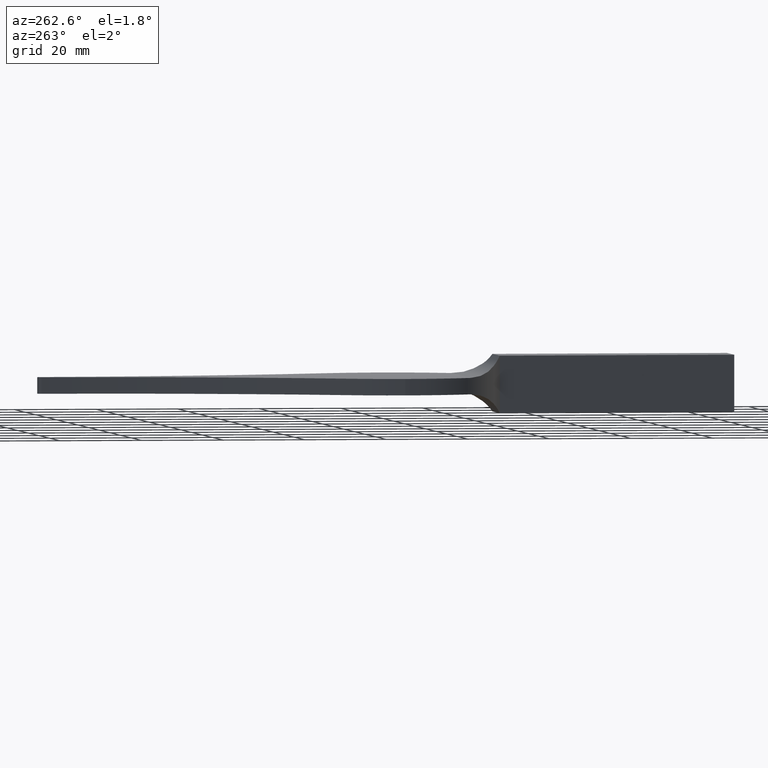
[diagram: clean part render]
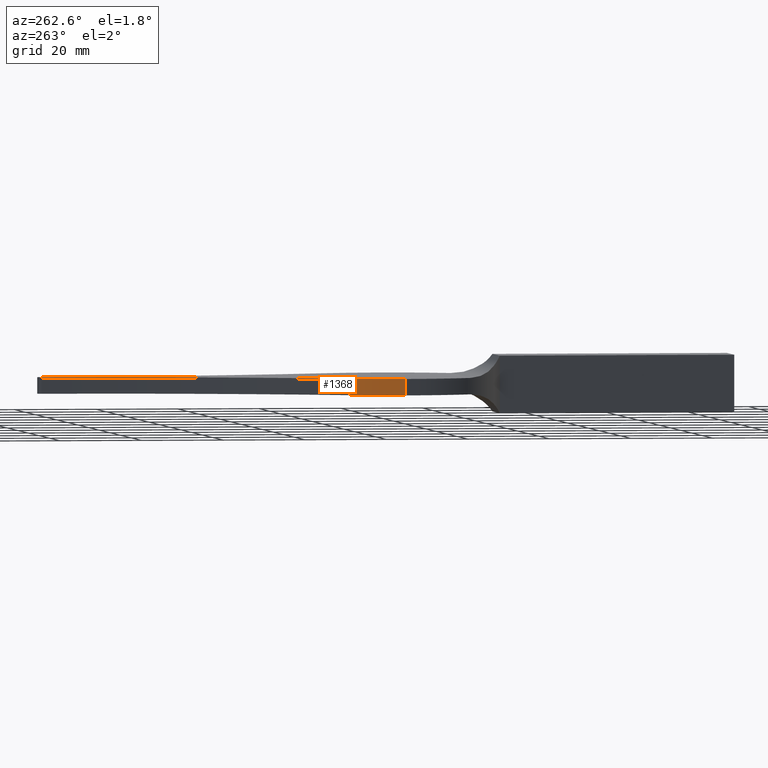
[diagram: same view with one face highlighted and labeled with its STEP entity id]
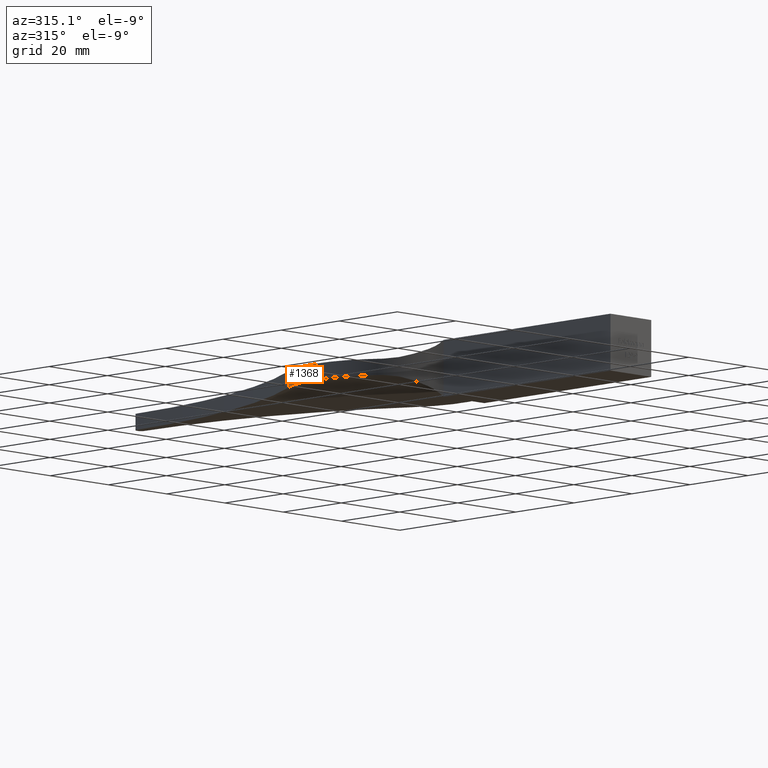
[diagram: same view with one face highlighted and labeled with its STEP entity id]
A machine part, auxiliary view. The second image highlights one B-rep face of the part: STEP entity #1368.
A second angle (auxiliary view) of the same face is appended — the face is thin or edge-on in the first view.
In plain terms, the highlighted cylindrical surface (partial cylindrical patch) has radius 26 mm, axis along (-0, -0, -1).
Its self-contained STEP definition (entity closure, byte-faithful):
#134 = EDGE_LOOP ( 'NONE', ( #2919, #4126, #8276, #8791 ) ) ;
#137 = LINE ( 'NONE', #7951, #5920 ) ;
#221 = DIRECTION ( 'NONE',  ( -1.000000000000000000, 0.0000000000000000000, 0.0000000000000000000 ) ) ;
#257 = VERTEX_POINT ( 'NONE', #9165 ) ;
#290 = CARTESIAN_POINT ( 'NONE',  ( -25.25000000000004600, 82.98918044109893800, -2.000000000000000000 ) ) ;
#350 = VERTEX_POINT ( 'NONE', #9383 ) ;
#806 = DIRECTION ( 'NONE',  ( 0.0000000000000000000, -0.0000000000000000000, -1.000000000000000000 ) ) ;
#820 = FACE_OUTER_BOUND ( 'NONE', #134, .T. ) ;
#835 = DIRECTION ( 'NONE',  ( 0.0000000000000000000, -0.0000000000000000000, -1.000000000000000000 ) ) ;
#1368 = ADVANCED_FACE ( 'NONE', ( #820 ), #3811, .T. ) ;
#1687 = CARTESIAN_POINT ( 'NONE',  ( -25.25000000000004600, 82.98918044109893800, 2.000000000000000000 ) ) ;
#2209 = CIRCLE ( 'NONE', #2937, 26.00000000000004300 ) ;
#2425 = VERTEX_POINT ( 'NONE', #7638 ) ;
#2828 = AXIS2_PLACEMENT_3D ( 'NONE', #5676, #4575, #221 ) ;
#2919 = ORIENTED_EDGE ( 'NONE', *, *, #7173, .F. ) ;
#2937 = AXIS2_PLACEMENT_3D ( 'NONE', #5136, #806, #5865 ) ;
#3811 = CYLINDRICAL_SURFACE ( 'NONE', #2828, 26.00000000000004300 ) ;
#4126 = ORIENTED_EDGE ( 'NONE', *, *, #4941, .T. ) ;
#4575 = DIRECTION ( 'NONE',  ( -0.0000000000000000000, -0.0000000000000000000, -1.000000000000000000 ) ) ;
#4941 = EDGE_CURVE ( 'NONE', #257, #2425, #9338, .T. ) ;
#5021 = DIRECTION ( 'NONE',  ( -0.0000000000000000000, -0.0000000000000000000, -1.000000000000000000 ) ) ;
#5136 = CARTESIAN_POINT ( 'NONE',  ( 0.7499999999999972200, 82.98918044109893800, -2.000000000000000000 ) ) ;
#5165 = CARTESIAN_POINT ( 'NONE',  ( 0.7499999999999972200, 82.98918044109893800, 2.000000000000000000 ) ) ;
#5676 = CARTESIAN_POINT ( 'NONE',  ( 0.7499999999999972200, 82.98918044109893800, 2.000000000000000000 ) ) ;
#5865 = DIRECTION ( 'NONE',  ( 1.000000000000000000, 0.0000000000000000000, 0.0000000000000000000 ) ) ;
#5883 = DIRECTION ( 'NONE',  ( 1.000000000000000000, 0.0000000000000000000, 0.0000000000000000000 ) ) ;
#5920 = VECTOR ( 'NONE', #5021, 1000.000000000000000 ) ;
#6671 = EDGE_CURVE ( 'NONE', #8794, #350, #2209, .T. ) ;
#7093 = EDGE_CURVE ( 'NONE', #2425, #350, #137, .T. ) ;
#7173 = EDGE_CURVE ( 'NONE', #257, #8794, #7415, .T. ) ;
#7214 = VECTOR ( 'NONE', #8216, 1000.000000000000000 ) ;
#7358 = AXIS2_PLACEMENT_3D ( 'NONE', #5165, #835, #5883 ) ;
#7415 = LINE ( 'NONE', #1687, #7214 ) ;
#7638 = CARTESIAN_POINT ( 'NONE',  ( -21.57350175787799500, 96.31814398917801200, 2.000000000000000000 ) ) ;
#7951 = CARTESIAN_POINT ( 'NONE',  ( -21.57350175787799500, 96.31814398917801200, 2.000000000000000000 ) ) ;
#8216 = DIRECTION ( 'NONE',  ( -0.0000000000000000000, -0.0000000000000000000, -1.000000000000000000 ) ) ;
#8276 = ORIENTED_EDGE ( 'NONE', *, *, #7093, .T. ) ;
#8791 = ORIENTED_EDGE ( 'NONE', *, *, #6671, .F. ) ;
#8794 = VERTEX_POINT ( 'NONE', #290 ) ;
#9165 = CARTESIAN_POINT ( 'NONE',  ( -25.25000000000004600, 82.98918044109893800, 2.000000000000000000 ) ) ;
#9338 = CIRCLE ( 'NONE', #7358, 26.00000000000004300 ) ;
#9383 = CARTESIAN_POINT ( 'NONE',  ( -21.57350175787799500, 96.31814398917801200, -2.000000000000000000 ) ) ;